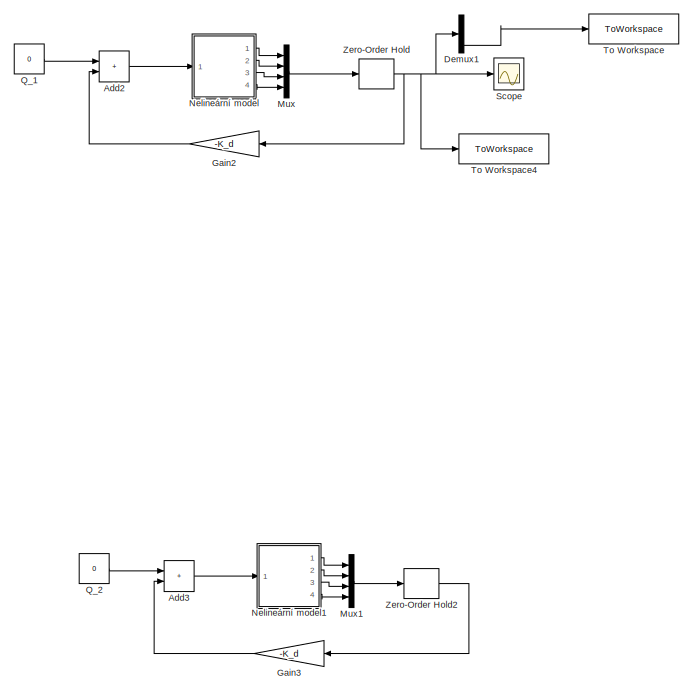
[diagram: root canvas - part 1/2, right side, full height]
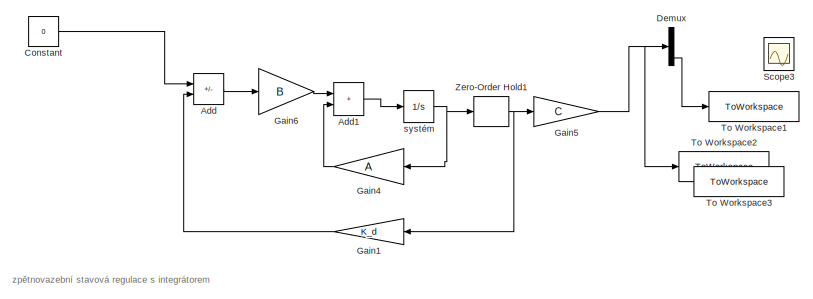
[diagram: root canvas - part 2/2, middle left region]
MODEL slx_8157f5364e5e
KIND model
CONFIG AbsTol = auto
CONFIG EnableMultiTasking = off
CONFIG FixedStep = auto
CONFIG MaxStep = auto
CONFIG MinStep = auto
CONFIG RelTol = 1e-3
CONFIG SampleTimeConstraint = Unconstrained
CONFIG SolverName = VariableStepAuto
CONFIG StartTime = 0.0
CONFIG StopTime = 15
BLOCK [Sum] Add
  IconShape = rectangular
  Inputs = +-
  Ports = [2, 1]
BLOCK [Sum] Add1
  IconShape = rectangular
  Ports = [2, 1]
BLOCK [Sum] Add2
  IconShape = rectangular
  Ports = [2, 1]
BLOCK [Sum] Add3
  IconShape = rectangular
  Ports = [2, 1]
BLOCK [Constant] Constant
  Value = 0
BLOCK [Demux] Demux
  Ports = [1, 4]
BLOCK [Demux] Demux1
  Ports = [1, 4]
BLOCK [Gain] Gain1
  Gain = K_d
  Multiplication = Matrix(K*u) (u vector)
  NameLocation = top
BLOCK [Gain] Gain2
  Gain = -K_d
  Multiplication = Matrix(K*u) (u vector)
  NameLocation = top
BLOCK [Gain] Gain3
  Gain = -K_d
  Multiplication = Matrix(K*u) (u vector)
  NameLocation = top
BLOCK [Gain] Gain4
  Gain = A
  Multiplication = Matrix(K*u) (u vector)
  NameLocation = top
BLOCK [Gain] Gain5
  Gain = C
  Multiplication = Matrix(K*u) (u vector)
BLOCK [Gain] Gain6
  Gain = B
  Multiplication = Matrix(K*u) (u vector)
BLOCK [Mux] Mux
  DisplayOption = bar
  Ports = [4, 1]
BLOCK [Mux] Mux1
  DisplayOption = bar
  Ports = [4, 1]
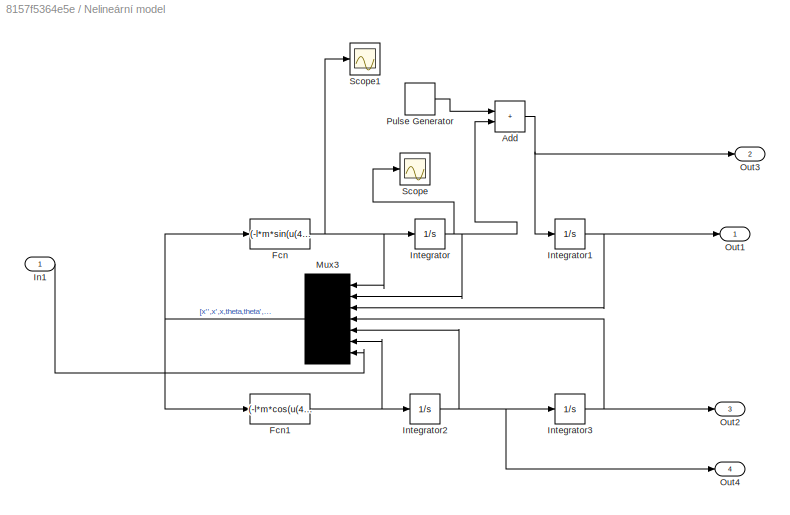
BLOCK [SubSystem] Nelineární model
  Ports = [1, 4]
  RequestExecContextInheritance = off
BLOCK [Sum] Nelineární model/Add
  IconShape = rectangular
  Ports = [2, 1]
BLOCK [Fcn] Nelineární model/Fcn
  Expr = (-l*m*sin(u(4))*u(5)^2+u(7)-m*g*cos(u(4))*sin(u(4)))/(-m*(cos(u(4))^2)+m+M)
BLOCK [Fcn] Nelineární model/Fcn1
  Expr = (-l*m*cos(u(4))*sin(u(4))*u(5)^2+u(7)*cos(u(4))-g*m*sin(u(4))-M*g*sin(u(4)))/(l*(-m*((cos(u(4)))^2)+M+m))
BLOCK [Inport] Nelineární model/In1
BLOCK [Integrator] Nelineární model/Integrator
  Ports = [1, 1]
BLOCK [Integrator] Nelineární model/Integrator1
  Ports = [1, 1]
BLOCK [Integrator] Nelineární model/Integrator2
  Ports = [1, 1]
BLOCK [Integrator] Nelineární model/Integrator3
  InitialCondition = pi/6
  Ports = [1, 1]
BLOCK [Mux] Nelineární model/Mux3
  DisplayOption = signals
  Inputs = 7
  NameLocation = top
  Ports = [7, 1]
BLOCK [Outport] Nelineární model/Out1
BLOCK [Outport] Nelineární model/Out2
  Port = 3
BLOCK [Outport] Nelineární model/Out3
  Port = 2
BLOCK [Outport] Nelineární model/Out4
  Port = 4
BLOCK [DiscretePulseGenerator] Nelineární model/Pulse Generator
  Amplitude = 0
  Ports = [0, 1]
  PulseType = Time based
  PulseWidth = 5
BLOCK [Scope] Nelineární model/Scope
  Floating = off
  NumInputPorts = 1
  Ports = [1]
  ScopeSpecificationString = Simulink.scopes.TimeScopeBlockCfg('CurrentConfiguration', extmgr.ConfigurationSet(extmgr.Configuration('Core','General UI',true),extmgr.Configuration('Core','Source UI',true),extmgr.Configuration('Sources','WiredSimulink',true,'DataLoggingVariableName','ScopeData1'),extmgr.Configuration('Visuals','Time Domain',true,'SerializedDisplays',{struct('MinYLimReal','-5845056736.13501','MaxYLimReal','52605...<+1512ch>
BLOCK [Scope] Nelineární model/Scope1
  Floating = off
  NumInputPorts = 1
  Ports = [1]
  ScopeSpecificationString = Simulink.scopes.TimeScopeBlockCfg('CurrentConfiguration', extmgr.ConfigurationSet(extmgr.Configuration('Core','General UI',true),extmgr.Configuration('Core','Source UI',true),extmgr.Configuration('Sources','WiredSimulink',true,'DataLoggingVariableName','ScopeData2'),extmgr.Configuration('Visuals','Time Domain',true,'SerializedDisplays',{struct('MinYLimReal','-2.41849','MaxYLimReal','2.41999','YLab...<+1410ch>
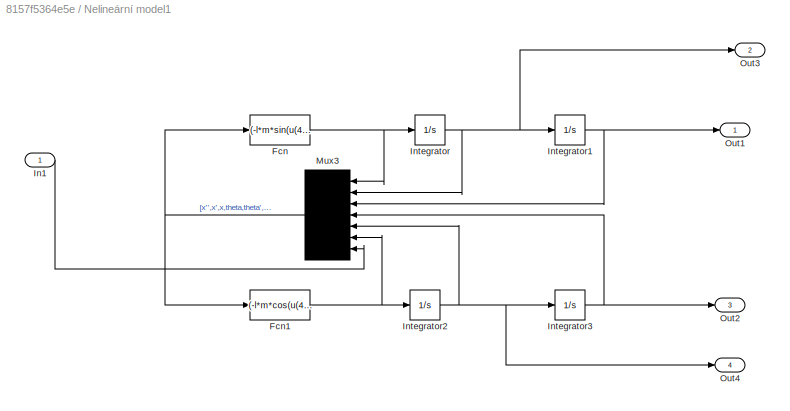
BLOCK [SubSystem] Nelineární model1
  Ports = [1, 4]
  RequestExecContextInheritance = off
BLOCK [Fcn] Nelineární model1/Fcn
  Expr = (-l*m*sin(u(4))*u(5)^2+u(7)-m*g*cos(u(4))*sin(u(4)))/(-m*(cos(u(4))^2)+m+M)
BLOCK [Fcn] Nelineární model1/Fcn1
  Expr = (-l*m*cos(u(4))*sin(u(4))*u(5)^2+u(7)*cos(u(4))-g*m*sin(u(4))-M*g*sin(u(4)))/(l*(-m*((cos(u(4)))^2)+M+m))
BLOCK [Inport] Nelineární model1/In1
BLOCK [Integrator] Nelineární model1/Integrator
  Ports = [1, 1]
BLOCK [Integrator] Nelineární model1/Integrator1
  Ports = [1, 1]
BLOCK [Integrator] Nelineární model1/Integrator2
  Ports = [1, 1]
BLOCK [Integrator] Nelineární model1/Integrator3
  InitialCondition = pi/6
  Ports = [1, 1]
BLOCK [Mux] Nelineární model1/Mux3
  DisplayOption = signals
  Inputs = 7
  NameLocation = top
  Ports = [7, 1]
BLOCK [Outport] Nelineární model1/Out1
BLOCK [Outport] Nelineární model1/Out2
  Port = 3
BLOCK [Outport] Nelineární model1/Out3
  Port = 2
BLOCK [Outport] Nelineární model1/Out4
  Port = 4
BLOCK [Constant] Q_1
  Value = 0
BLOCK [Constant] Q_2
  Value = 0
BLOCK [Scope] Scope
  Floating = off
  NumInputPorts = 1
  Ports = [1]
  ScopeSpecificationString = Simulink.scopes.TimeScopeBlockCfg('CurrentConfiguration', extmgr.ConfigurationSet(extmgr.Configuration('Core','General UI',true),extmgr.Configuration('Core','Source UI',true),extmgr.Configuration('Sources','WiredSimulink',true,'DataLoggingVariableName','ScopeData2'),extmgr.Configuration('Visuals','Time Domain',true,'SerializedDisplays',{struct('MinYLimReal','-2.63471','MaxYLimReal','1.32427','YLab...<+1468ch>
BLOCK [Scope] Scope3
  Floating = off
  NumInputPorts = 2
  Ports = [2]
  ScopeSpecificationString = Simulink.scopes.TimeScopeBlockCfg('CurrentConfiguration', extmgr.ConfigurationSet(extmgr.Configuration('Core','General UI',true),extmgr.Configuration('Core','Source UI',true),extmgr.Configuration('Sources','WiredSimulink',true,'DataLoggingVariableName','ScopeData1'),extmgr.Configuration('Visuals','Time Domain',true,'SerializedDisplays',{struct('MinYLimReal','-2.16709','MaxYLimReal','1.02329','YLab...<+1502ch>
BLOCK [ToWorkspace] To Workspace
  FixptAsFi = on
  MaxDataPoints = inf
  Ports = [1]
  SampleTime = -1
  SaveFormat = Timeseries
  VariableName = nonLinearTheta
BLOCK [ToWorkspace] To Workspace1
  FixptAsFi = on
  MaxDataPoints = inf
  Ports = [1]
  SampleTime = -1
  SaveFormat = Timeseries
  VariableName = linearTheta
BLOCK [ToWorkspace] To Workspace2
  FixptAsFi = on
  MaxDataPoints = inf
  Ports = [1]
  SampleTime = -1
  SaveFormat = Timeseries
  VariableName = linear
BLOCK [ToWorkspace] To Workspace3
  FixptAsFi = on
  MaxDataPoints = inf
  Ports = [1]
  SampleTime = -1
  SaveFormat = Timeseries
  VariableName = linear1
BLOCK [ToWorkspace] To Workspace4
  FixptAsFi = on
  MaxDataPoints = inf
  Ports = [1]
  SampleTime = -1
  SaveFormat = Timeseries
  VariableName = nonlinear
BLOCK [ZeroOrderHold] Zero-Order Hold
  SampleTime = Ts
BLOCK [ZeroOrderHold] Zero-Order Hold1
  SampleTime = Ts
BLOCK [ZeroOrderHold] Zero-Order Hold2
  SampleTime = Ts
BLOCK [Integrator] systém
  InitialCondition = [0;0;pi/6;0]
  Ports = [1, 1]
ANNOTATION (root): zpětnovazební stavová regulace s integrátorem
LINE Add1:1 -> systém:1
LINE Add2:1 -> Nelineární model:1
LINE Add3:1 -> Nelineární model1:1
LINE Add:1 -> Gain6:1
LINE Constant:1 -> Add:1
LINE Demux1:4 -> To Workspace:1
LINE Demux:4 -> To Workspace1:1
LINE Gain1:1 -> Add:2
LINE Gain2:1 -> Add2:2
LINE Gain3:1 -> Add3:2
LINE Gain4:1 -> Add1:2
NET Gain5:1 -> Demux:1, To Workspace2:1
LINE Gain6:1 -> Add1:1
LINE Mux1:1 -> Zero-Order Hold2:1
LINE Mux:1 -> Zero-Order Hold:1
NET Nelineární model/Add:1 -> Nelineární model/Integrator1:1, Nelineární model/Out3:1
NET Nelineární model/Fcn1:1 -> Nelineární model/Integrator2:1, Nelineární model/Mux3:6
NET Nelineární model/Fcn:1 -> Nelineární model/Integrator:1, Nelineární model/Mux3:1, Nelineární model/Scope1:1
LINE Nelineární model/In1:1 -> Nelineární model/Mux3:7
NET Nelineární model/Integrator1:1 -> Nelineární model/Mux3:3, Nelineární model/Out1:1
NET Nelineární model/Integrator2:1 -> Nelineární model/Integrator3:1, Nelineární model/Mux3:5, Nelineární model/Out4:1
NET Nelineární model/Integrator3:1 -> Nelineární model/Mux3:4, Nelineární model/Out2:1
NET Nelineární model/Integrator:1 -> Nelineární model/Add:2, Nelineární model/Mux3:2, Nelineární model/Scope:1
NET Nelineární model/Mux3:1 -> Nelineární model/Fcn1:1, Nelineární model/Fcn:1
LINE Nelineární model/Pulse Generator:1 -> Nelineární model/Add:1
NET Nelineární model1/Fcn1:1 -> Nelineární model1/Integrator2:1, Nelineární model1/Mux3:6
NET Nelineární model1/Fcn:1 -> Nelineární model1/Integrator:1, Nelineární model1/Mux3:1
LINE Nelineární model1/In1:1 -> Nelineární model1/Mux3:7
NET Nelineární model1/Integrator1:1 -> Nelineární model1/Mux3:3, Nelineární model1/Out1:1
NET Nelineární model1/Integrator2:1 -> Nelineární model1/Integrator3:1, Nelineární model1/Mux3:5, Nelineární model1/Out4:1
NET Nelineární model1/Integrator3:1 -> Nelineární model1/Mux3:4, Nelineární model1/Out2:1
NET Nelineární model1/Integrator:1 -> Nelineární model1/Integrator1:1, Nelineární model1/Mux3:2, Nelineární model1/Out3:1
NET Nelineární model1/Mux3:1 -> Nelineární model1/Fcn1:1, Nelineární model1/Fcn:1
LINE Nelineární model1:1 -> Mux1:1
LINE Nelineární model1:2 -> Mux1:2
LINE Nelineární model1:3 -> Mux1:3
LINE Nelineární model1:4 -> Mux1:4
LINE Nelineární model:1 -> Mux:1
LINE Nelineární model:2 -> Mux:2
LINE Nelineární model:3 -> Mux:3
LINE Nelineární model:4 -> Mux:4
LINE Q_1:1 -> Add2:1
LINE Q_2:1 -> Add3:1
NET Zero-Order Hold1:1 -> Gain1:1, Gain5:1
LINE Zero-Order Hold2:1 -> Gain3:1
NET Zero-Order Hold:1 -> Demux1:1, Gain2:1, Scope:1, To Workspace4:1
NET systém:1 -> Gain4:1, Zero-Order Hold1:1
note: NET lines group one-source signal fan-out (src -> all destinations, sorted); 1:1 wires keep LINE
